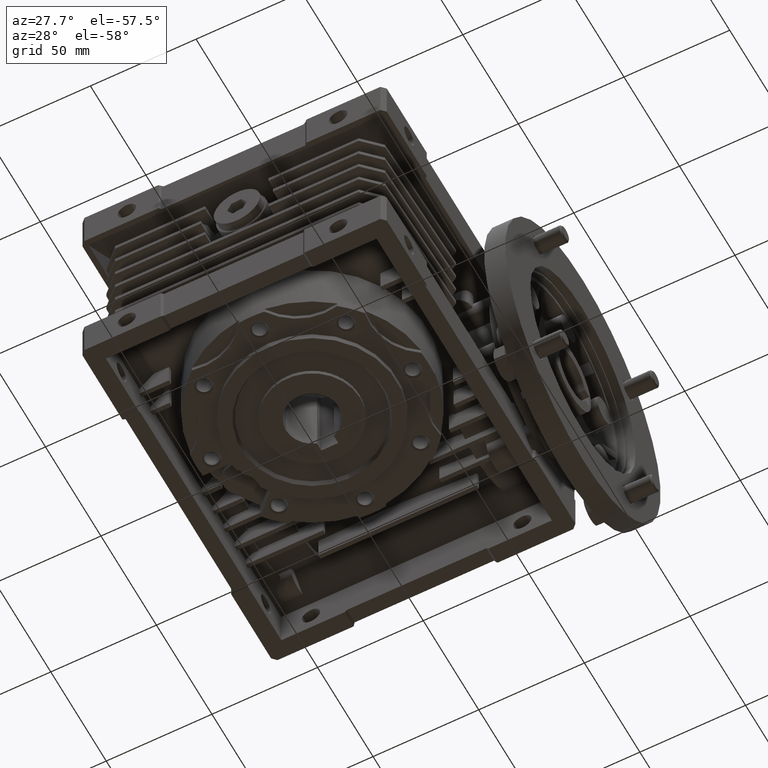
[diagram: clean part render]
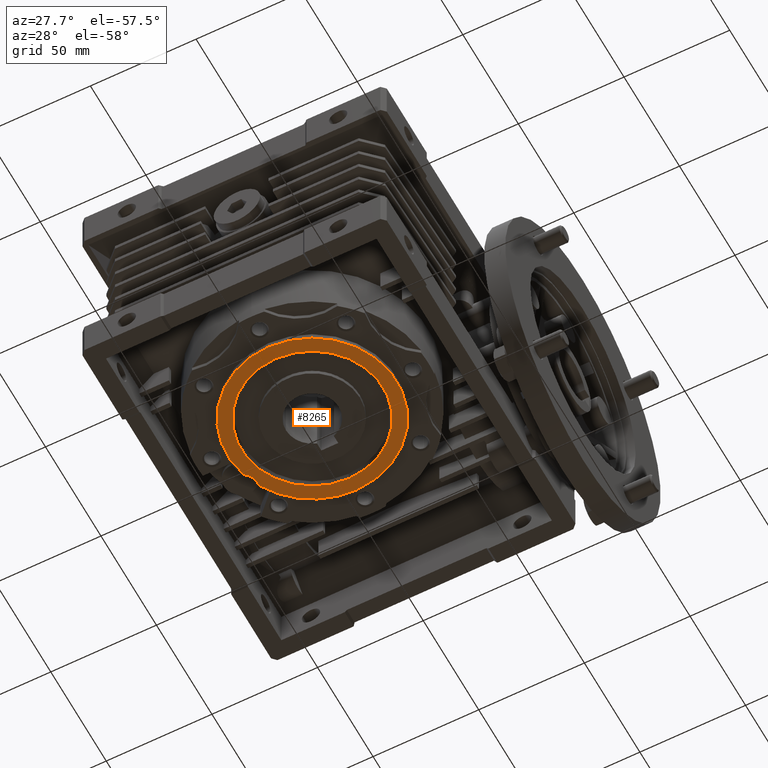
[diagram: same view with one face highlighted and labeled with its STEP entity id]
A machine part, auxiliary view. The second image highlights one B-rep face of the part: STEP entity #8265.
In plain terms, the highlighted planar face has unit normal (0, 0, 1).
Its self-contained STEP definition (entity closure, byte-faithful):
#29 = CIRCLE ( 'NONE', #37688, 40.00000000000000000 ) ;
#2409 = CARTESIAN_POINT ( 'NONE',  ( -38.35639019674439254, 11.34845060239890024, -56.00000000000000000 ) ) ;
#2775 = DIRECTION ( 'NONE',  ( 0.000000000000000000, -1.000000000000000000, 0.000000000000000000 ) ) ;
#4896 = VERTEX_POINT ( 'NONE', #10733 ) ;
#5968 = CARTESIAN_POINT ( 'NONE',  ( 0.000000000000000000, 0.000000000000000000, -56.00000000000000000 ) ) ;
#6027 = VERTEX_POINT ( 'NONE', #10683 ) ;
#7405 = CARTESIAN_POINT ( 'NONE',  ( 0.000000000000000000, 0.000000000000000000, -56.00000000000000000 ) ) ;
#7823 = CARTESIAN_POINT ( 'NONE',  ( -35.14662998687204976, 19.09749723303835012, -56.00000000000000000 ) ) ;
#8265 = ADVANCED_FACE ( 'NONE', ( #13689, #31089 ), #40675, .F. ) ;
#9042 = ORIENTED_EDGE ( 'NONE', *, *, #33227, .F. ) ;
#9862 = DIRECTION ( 'NONE',  ( 0.000000000000000000, 1.000000000000000000, 0.000000000000000000 ) ) ;
#10059 = CARTESIAN_POINT ( 'NONE',  ( 0.000000000000000000, 0.000000000000000000, -56.00000000000000000 ) ) ;
#10683 = CARTESIAN_POINT ( 'NONE',  ( 0.000000000000000000, 40.00000000000000000, -56.00000000000000000 ) ) ;
#10733 = CARTESIAN_POINT ( 'NONE',  ( -4.102566777143633774E-15, 33.50000000000000000, -56.00000000000000000 ) ) ;
#10833 = ORIENTED_EDGE ( 'NONE', *, *, #35977, .T. ) ;
#11024 = ORIENTED_EDGE ( 'NONE', *, *, #28264, .F. ) ;
#11572 = AXIS2_PLACEMENT_3D ( 'NONE', #5968, #43582, #29791 ) ;
#12135 = CIRCLE ( 'NONE', #35627, 40.00000000000000000 ) ;
#13188 = DIRECTION ( 'NONE',  ( 0.000000000000000000, 0.000000000000000000, 1.000000000000000000 ) ) ;
#13689 = FACE_OUTER_BOUND ( 'NONE', #24787, .T. ) ;
#14120 = CIRCLE ( 'NONE', #36223, 33.50000000000000000 ) ;
#14743 = DIRECTION ( 'NONE',  ( 0.000000000000000000, 0.000000000000000000, 1.000000000000000000 ) ) ;
#15312 = CARTESIAN_POINT ( 'NONE',  ( 0.000000000000000000, -33.50000000000000000, -56.00000000000000000 ) ) ;
#16905 = EDGE_CURVE ( 'NONE', #6027, #20161, #12135, .T. ) ;
#17567 = CARTESIAN_POINT ( 'NONE',  ( -4.898587196589413026E-15, -40.00000000000000000, -56.00000000000000000 ) ) ;
#19901 = CARTESIAN_POINT ( 'NONE',  ( 0.000000000000000000, 0.000000000000000000, -56.00000000000000000 ) ) ;
#20161 = VERTEX_POINT ( 'NONE', #7823 ) ;
#20592 = CARTESIAN_POINT ( 'NONE',  ( -40.00000000000000000, 0.000000000000000000, -56.00000000000000000 ) ) ;
#21390 = CIRCLE ( 'NONE', #22847, 8.349999999999999645 ) ;
#22847 = AXIS2_PLACEMENT_3D ( 'NONE', #28688, #25107, #35581 ) ;
#23947 = DIRECTION ( 'NONE',  ( 0.000000000000000000, 0.000000000000000000, 1.000000000000000000 ) ) ;
#24787 = EDGE_LOOP ( 'NONE', ( #9042, #11024, #37232, #40309 ) ) ;
#24837 = VERTEX_POINT ( 'NONE', #17567 ) ;
#25107 = DIRECTION ( 'NONE',  ( 0.000000000000000000, 0.000000000000000000, -1.000000000000000000 ) ) ;
#26805 = DIRECTION ( 'NONE',  ( 0.000000000000000000, 0.000000000000000000, 1.000000000000000000 ) ) ;
#27648 = AXIS2_PLACEMENT_3D ( 'NONE', #19901, #26805, #30359 ) ;
#28264 = EDGE_CURVE ( 'NONE', #20161, #32779, #21390, .T. ) ;
#28688 = CARTESIAN_POINT ( 'NONE',  ( -43.42233802803050224, 17.98612132115919948, -56.00000000000000000 ) ) ;
#29267 = VERTEX_POINT ( 'NONE', #15312 ) ;
#29522 = ORIENTED_EDGE ( 'NONE', *, *, #32234, .T. ) ;
#29791 = DIRECTION ( 'NONE',  ( 0.000000000000000000, -1.000000000000000000, 0.000000000000000000 ) ) ;
#30359 = DIRECTION ( 'NONE',  ( 0.000000000000000000, 1.000000000000000000, 0.000000000000000000 ) ) ;
#31089 = FACE_BOUND ( 'NONE', #40701, .T. ) ;
#32192 = EDGE_CURVE ( 'NONE', #24837, #6027, #36931, .T. ) ;
#32234 = EDGE_CURVE ( 'NONE', #4896, #29267, #14120, .T. ) ;
#32779 = VERTEX_POINT ( 'NONE', #2409 ) ;
#33227 = EDGE_CURVE ( 'NONE', #32779, #24837, #29, .T. ) ;
#35047 = CIRCLE ( 'NONE', #11572, 33.50000000000000000 ) ;
#35581 = DIRECTION ( 'NONE',  ( 0.000000000000000000, -1.000000000000000000, 0.000000000000000000 ) ) ;
#35627 = AXIS2_PLACEMENT_3D ( 'NONE', #7405, #14743, #37696 ) ;
#35977 = EDGE_CURVE ( 'NONE', #29267, #4896, #35047, .T. ) ;
#36223 = AXIS2_PLACEMENT_3D ( 'NONE', #10059, #43508, #2775 ) ;
#36931 = CIRCLE ( 'NONE', #27648, 40.00000000000000000 ) ;
#37232 = ORIENTED_EDGE ( 'NONE', *, *, #16905, .F. ) ;
#37309 = DIRECTION ( 'NONE',  ( 1.000000000000000000, 0.000000000000000000, 0.000000000000000000 ) ) ;
#37688 = AXIS2_PLACEMENT_3D ( 'NONE', #43302, #13188, #9862 ) ;
#37696 = DIRECTION ( 'NONE',  ( 0.000000000000000000, 1.000000000000000000, 0.000000000000000000 ) ) ;
#40309 = ORIENTED_EDGE ( 'NONE', *, *, #32192, .F. ) ;
#40675 = PLANE ( 'NONE',  #43085 ) ;
#40701 = EDGE_LOOP ( 'NONE', ( #10833, #29522 ) ) ;
#43085 = AXIS2_PLACEMENT_3D ( 'NONE', #20592, #23947, #37309 ) ;
#43302 = CARTESIAN_POINT ( 'NONE',  ( 0.000000000000000000, 0.000000000000000000, -56.00000000000000000 ) ) ;
#43508 = DIRECTION ( 'NONE',  ( 0.000000000000000000, 0.000000000000000000, 1.000000000000000000 ) ) ;
#43582 = DIRECTION ( 'NONE',  ( 0.000000000000000000, 0.000000000000000000, 1.000000000000000000 ) ) ;